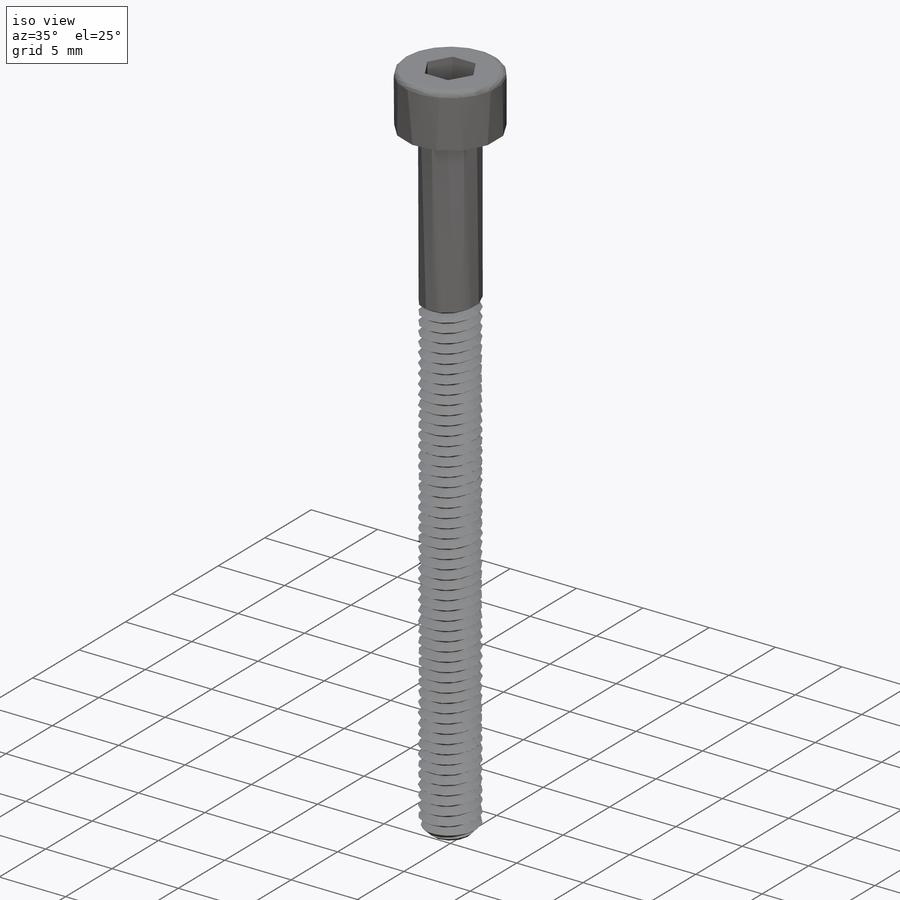
[diagram: iso view]
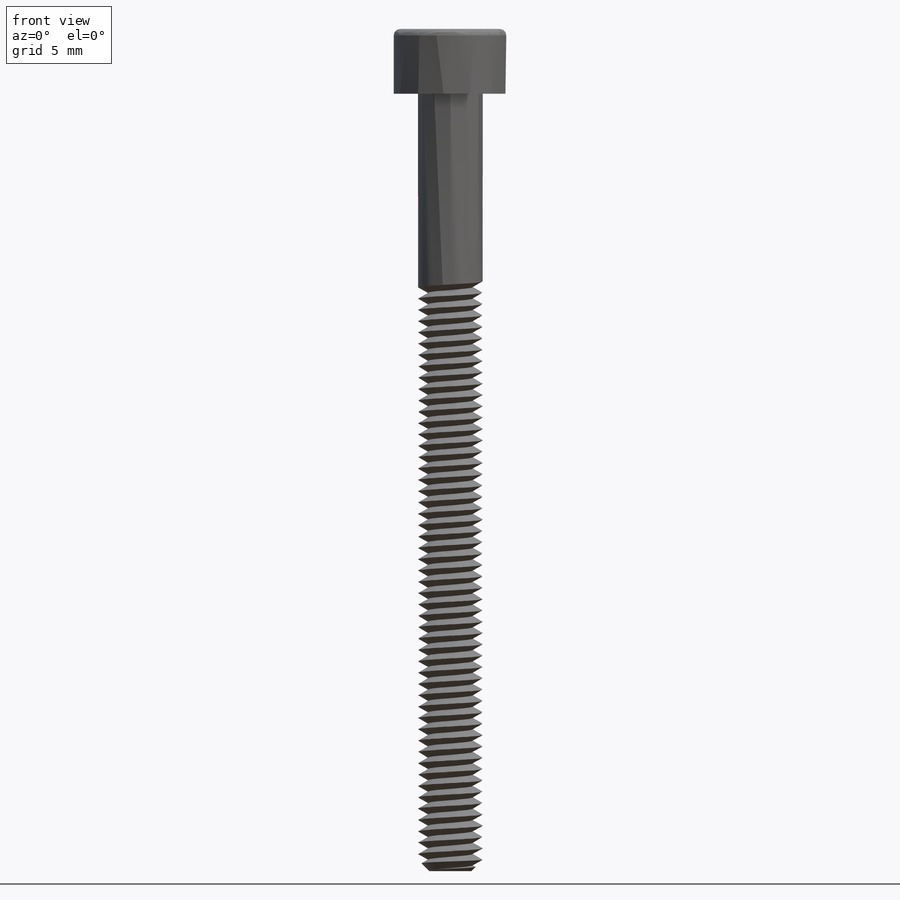
[diagram: front view]
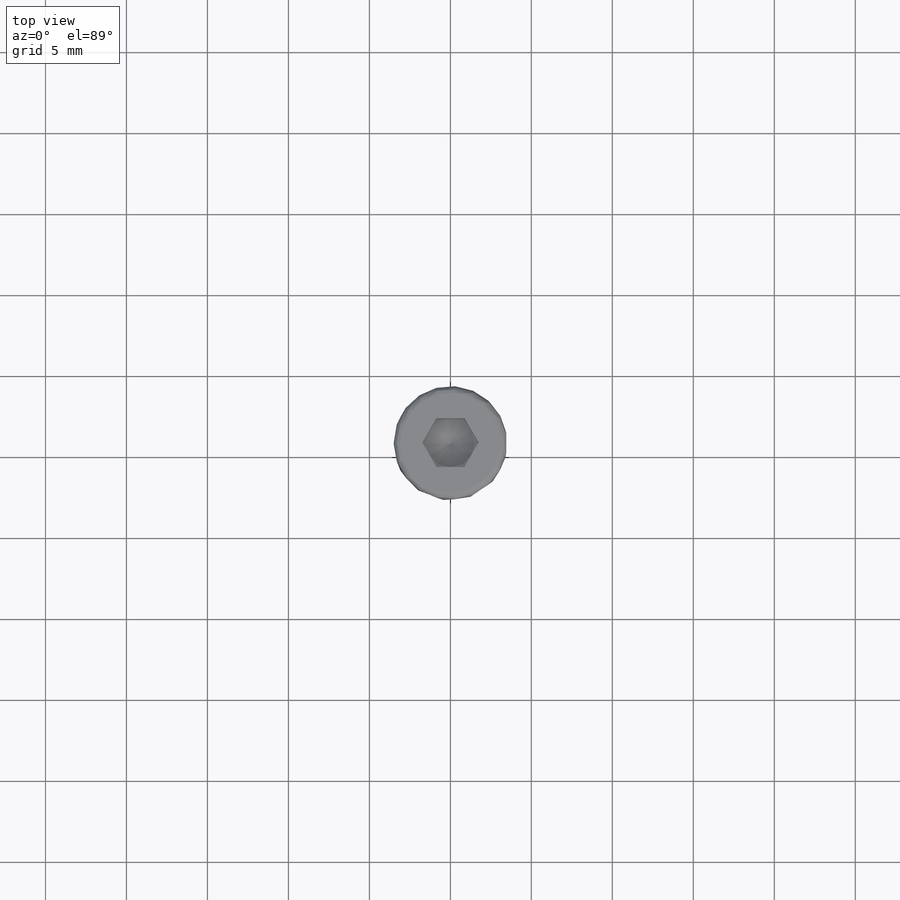
[diagram: top view]
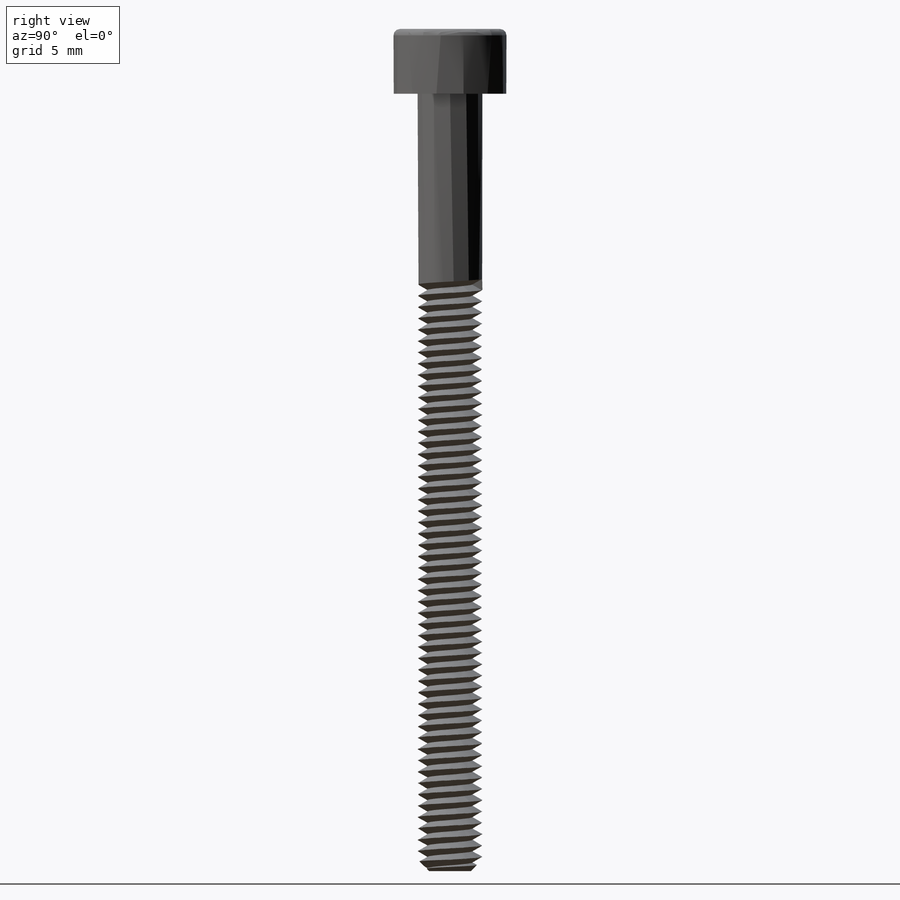
[diagram: right view]
SOLIDWORKS PART (.sldprt)
format: sldprt  version: not decoded by parser v0  size: 596,992 bytes
history: native  units: mm
features: sketch x5, plane x3, material x1, extrude x1, chamfer x1, revolve x1, cut_extrude x1, helix x1, sweep x1 (+11 scaffold rows collapsed)
feature tree (26):
  scaffold x11  (default folders/planes/origin — collapsed)
  material  "Matériau <non spécifié>"
  plane  "Face"
  plane  "Dessus"
  plane  "Droite"
  sketch  "Esquisse1"  dims[Diamètre nominal=4.0mm]
  extrude  "Tige"  Depth=48mm Longueur sous tête=48mm
  chamfer  "Chanfrein d'entrée"  Distance=0.7mm Angle=45deg Pas=0.7mm
  sketch  "Esquisse2"  dims[c1.D2=0.4mm c1.Hauteur tête=2.0mm c1.Cote sur plats=5.5mm c1.D3=~2.780036mm c2.D3=30.0deg c2.D4=2.75mm c2.Diamètre tête=7.0mm c2.Diamètre nominal=3.0mm c2.D1=3.5mm c3.D3=3.0mm c4.D3=60.0deg c4.Diamètre nominal=4.0mm c4.Cote sur plats=3.0mm c4.D4=2.0mm c4.D5=1.5mm]
  revolve  "Tête"  Angle=360deg
  sketch  "Esquisse3"  dims[c1.D1=~2.410714mm c2.D1=30.0deg c2.D2=~1.370242mm c3.D2=30.0deg c3.D3=~0.721688mm]
  cut_extrude  "Hexagone"  Depth=2mm
  sketch  "Esquisse4"
  helix  "Hélice1"  Pitch=33.2325mm Pas=0.7mm Longueur filetée=47.475
  sketch  "Esquisse5"  dims[c1.D1=~0.214749mm c2.D1=29.5deg c2.Pas=0.5mm c3.Pas=0.7mm c3.D2=2.0mm c4.D2=29.5deg c4.D3=~1.066987mm c4.D4=0.25mm c4.D5=0.25mm c4.Pas=0.5mm c5.D2=~0.694205mm c6.D2=29.5deg]
  sweep  "Filetage"
decode coverage: 9 of 11 modeling features carry decoded parameters
note: ~ marks probable driven/reference dimensions
note: suppression state not decoded; provenance and decode notes live in map.json
